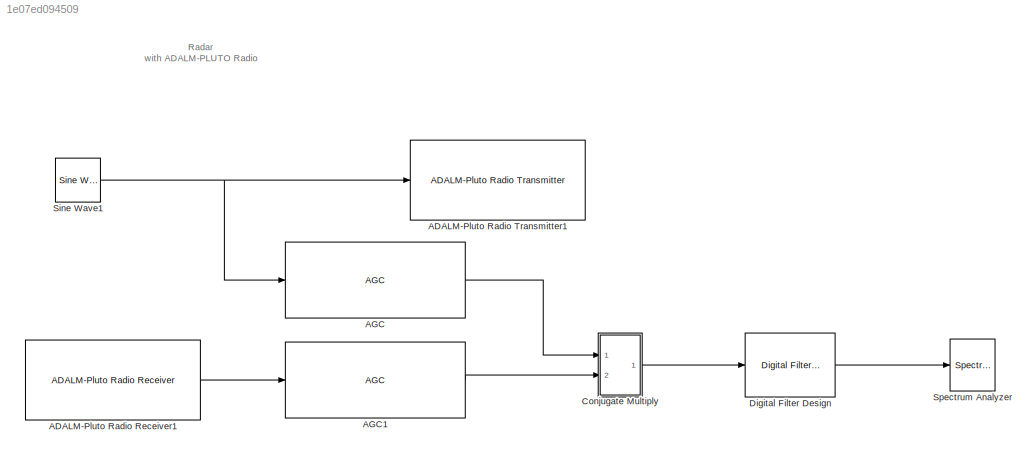
MODEL slx_1e07ed094509
KIND model
CONFIG AbsTol = auto
CONFIG EnableMultiTasking = off
CONFIG FixedStep = auto
CONFIG MaxStep = auto
CONFIG MinStep = auto
CONFIG RelTol = 1e-3
CONFIG SampleTimeConstraint = Unconstrained
CONFIG SolverName = FixedStepDiscrete
CONFIG StartTime = 0.0
CONFIG StopTime = inf
BLOCK [Reference] ADALM-Pluto Radio Receiver1  REF=plutoradiolib/ADALM-Pluto Radio
Receiver
  Ports = [0, 1]
  SourceBlock = plutoradiolib/ADALM-Pluto Radio\nReceiver
  SourceProductBaseCode = PLUTO
  SourceType = comm.SDRRxPluto
BLOCK [Reference] ADALM-Pluto Radio Transmitter1  REF=plutoradiolib/ADALM-Pluto Radio
Transmitter
  Ports = [1]
  SourceBlock = plutoradiolib/ADALM-Pluto Radio\nTransmitter
  SourceProductBaseCode = PLUTO
  SourceType = comm.SDRTxPluto
BLOCK [Reference] AGC  REF=commrfcorlib/AGC
  Ports = [1, 1]
  SourceBlock = commrfcorlib/AGC
  SourceProductBaseCode = CM
  SourceType = AGC
BLOCK [Reference] AGC1  REF=commrfcorlib/AGC
  Ports = [1, 1]
  SourceBlock = commrfcorlib/AGC
  SourceProductBaseCode = CM
  SourceType = AGC
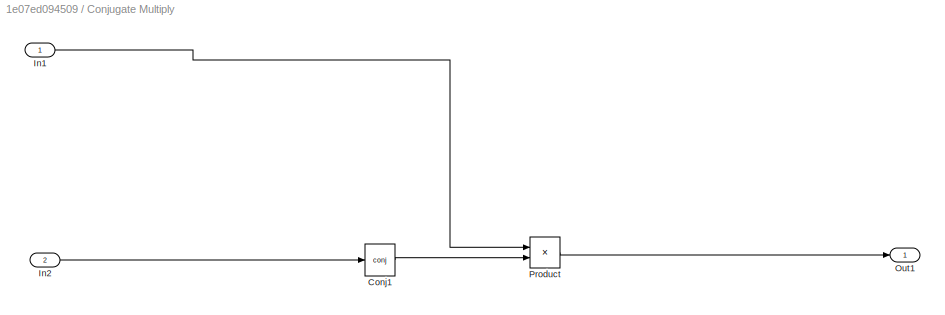
BLOCK [SubSystem] Conjugate Multiply
  Ports = [2, 1]
  RequestExecContextInheritance = off
BLOCK [Math] Conjugate Multiply/Conj1
  Operator = conj
  Ports = [1, 1]
BLOCK [Inport] Conjugate Multiply/In1
BLOCK [Inport] Conjugate Multiply/In2
  Port = 2
BLOCK [Outport] Conjugate Multiply/Out1
BLOCK [Product] Conjugate Multiply/Product
  Ports = [2, 1]
BLOCK [Reference] Digital Filter Design  REF=dsparch4/Digital
Filter Design
  Ports = [1, 1]
  SourceBlock = dsparch4/Digital\nFilter Design
  SourceProductBaseCode = DS
  SourceType = Digital Filter Design
  UserDataPersistent = on
BLOCK [Reference] Sine Wave1  REF=dspsrcs4/Sine Wave
  Ports = [0, 1]
  SourceBlock = dspsrcs4/Sine Wave
  SourceProductBaseCode = DS
  SourceType = Sine Wave
BLOCK [SpectrumAnalyzer] Spectrum Analyzer
  Ports = [1]
  ScopeSpecificationString = spbscopes.SpectrumAnalyzerBlockCfg('CurrentConfiguration', extmgr.ConfigurationSet(extmgr.Configuration('Core','General UI',true),extmgr.Configuration('Core','Source UI',true),extmgr.Configuration('Sources','WiredSimulink',true),extmgr.Configuration('Sources','SimulinkEvent',false),extmgr.Configuration('Sources','Simulink',false),extmgr.Configuration('Sources','SPTool',false),extmgr.Configuration(...<+5123ch>
ANNOTATION (root): Radar with ADALM-PLUTO Radio
LINE ADALM-Pluto Radio Receiver1:1 -> AGC1:1
LINE AGC1:1 -> Conjugate Multiply:2
LINE AGC:1 -> Conjugate Multiply:1
LINE Conjugate Multiply/Conj1:1 -> Conjugate Multiply/Product:2
LINE Conjugate Multiply/In1:1 -> Conjugate Multiply/Product:1
LINE Conjugate Multiply/In2:1 -> Conjugate Multiply/Conj1:1
LINE Conjugate Multiply/Product:1 -> Conjugate Multiply/Out1:1
LINE Conjugate Multiply:1 -> Digital Filter Design:1
LINE Digital Filter Design:1 -> Spectrum Analyzer:1
NET Sine Wave1:1 -> ADALM-Pluto Radio Transmitter1:1, AGC:1
note: NET lines group one-source signal fan-out (src -> all destinations, sorted); 1:1 wires keep LINE
